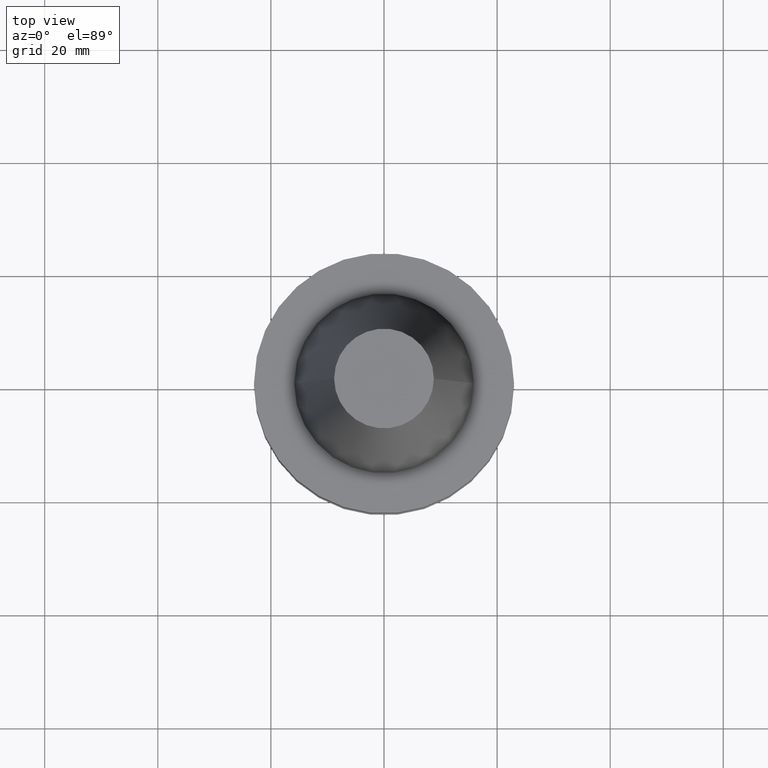
[diagram: clean part render]
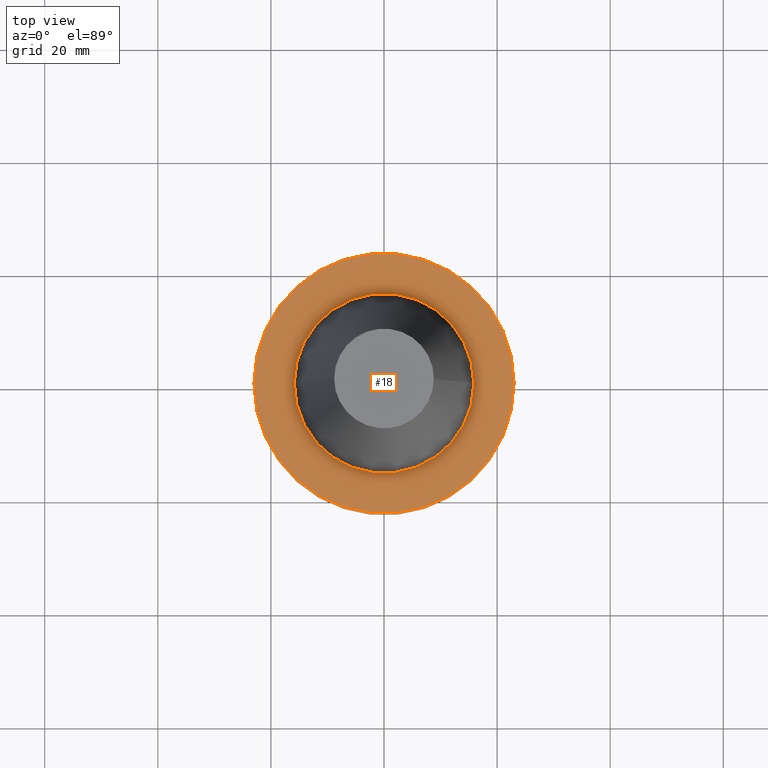
[diagram: same view with one face highlighted and labeled with its STEP entity id]
A machine part, top view. The second image highlights one B-rep face of the part: STEP entity #18.
In plain terms, the highlighted planar face has unit normal (0, 0, -1).
Its self-contained STEP definition (entity closure, byte-faithful):
#18 = ADVANCED_FACE ( 'NONE', ( #169, #405 ), #644, .F. ) ;
#24 = CIRCLE ( 'NONE', #332, 23.00000000000000000 ) ;
#29 = DIRECTION ( 'NONE',  ( 1.000000000000000000, 0.000000000000000000, 0.000000000000000000 ) ) ;
#40 = EDGE_LOOP ( 'NONE', ( #165, #723 ) ) ;
#55 = DIRECTION ( 'NONE',  ( -0.000000000000000000, -0.000000000000000000, 1.000000000000000000 ) ) ;
#89 = EDGE_CURVE ( 'NONE', #499, #131, #355, .T. ) ;
#104 = AXIS2_PLACEMENT_3D ( 'NONE', #368, #471, #728 ) ;
#117 = CARTESIAN_POINT ( 'NONE',  ( -23.00000000000000000, 2.816687638038912746E-15, -0.5000000000000004441 ) ) ;
#131 = VERTEX_POINT ( 'NONE', #187 ) ;
#146 = DIRECTION ( 'NONE',  ( -0.000000000000000000, -0.000000000000000000, 1.000000000000000000 ) ) ;
#165 = ORIENTED_EDGE ( 'NONE', *, *, #322, .T. ) ;
#169 = FACE_BOUND ( 'NONE', #283, .T. ) ;
#187 = CARTESIAN_POINT ( 'NONE',  ( -15.87500000000000000, 1.944126793646423238E-15, -0.5000000000000004441 ) ) ;
#261 = CARTESIAN_POINT ( 'NONE',  ( 0.000000000000000000, 0.000000000000000000, -0.5000000000000004441 ) ) ;
#262 = CARTESIAN_POINT ( 'NONE',  ( 0.000000000000000000, 0.000000000000000000, -0.5000000000000004441 ) ) ;
#283 = EDGE_LOOP ( 'NONE', ( #394, #383 ) ) ;
#322 = EDGE_CURVE ( 'NONE', #524, #573, #24, .T. ) ;
#332 = AXIS2_PLACEMENT_3D ( 'NONE', #262, #686, #747 ) ;
#349 = CARTESIAN_POINT ( 'NONE',  ( 15.87500000000000000, 0.000000000000000000, -0.5000000000000004441 ) ) ;
#355 = CIRCLE ( 'NONE', #642, 15.87500000000000000 ) ;
#363 = CIRCLE ( 'NONE', #505, 23.00000000000000000 ) ;
#368 = CARTESIAN_POINT ( 'NONE',  ( 0.000000000000000000, 0.000000000000000000, -0.5000000000000004441 ) ) ;
#383 = ORIENTED_EDGE ( 'NONE', *, *, #622, .F. ) ;
#394 = ORIENTED_EDGE ( 'NONE', *, *, #89, .F. ) ;
#400 = DIRECTION ( 'NONE',  ( -1.000000000000000000, 0.000000000000000000, -0.000000000000000000 ) ) ;
#404 = CARTESIAN_POINT ( 'NONE',  ( 23.00000000000000000, 0.000000000000000000, -0.5000000000000004441 ) ) ;
#405 = FACE_OUTER_BOUND ( 'NONE', #40, .T. ) ;
#471 = DIRECTION ( 'NONE',  ( -0.000000000000000000, -0.000000000000000000, 1.000000000000000000 ) ) ;
#499 = VERTEX_POINT ( 'NONE', #349 ) ;
#505 = AXIS2_PLACEMENT_3D ( 'NONE', #261, #146, #29 ) ;
#524 = VERTEX_POINT ( 'NONE', #404 ) ;
#533 = DIRECTION ( 'NONE',  ( 1.000000000000000000, 0.000000000000000000, 0.000000000000000000 ) ) ;
#535 = CARTESIAN_POINT ( 'NONE',  ( 0.000000000000000000, 23.00000000000000000, -0.4999999999999995559 ) ) ;
#573 = VERTEX_POINT ( 'NONE', #117 ) ;
#622 = EDGE_CURVE ( 'NONE', #131, #499, #768, .T. ) ;
#641 = AXIS2_PLACEMENT_3D ( 'NONE', #535, #650, #400 ) ;
#642 = AXIS2_PLACEMENT_3D ( 'NONE', #760, #55, #533 ) ;
#644 = PLANE ( 'NONE',  #641 ) ;
#650 = DIRECTION ( 'NONE',  ( 0.000000000000000000, 0.000000000000000000, -1.000000000000000000 ) ) ;
#686 = DIRECTION ( 'NONE',  ( -0.000000000000000000, -0.000000000000000000, 1.000000000000000000 ) ) ;
#723 = ORIENTED_EDGE ( 'NONE', *, *, #732, .T. ) ;
#728 = DIRECTION ( 'NONE',  ( 1.000000000000000000, 0.000000000000000000, 0.000000000000000000 ) ) ;
#732 = EDGE_CURVE ( 'NONE', #573, #524, #363, .T. ) ;
#747 = DIRECTION ( 'NONE',  ( 1.000000000000000000, 0.000000000000000000, 0.000000000000000000 ) ) ;
#760 = CARTESIAN_POINT ( 'NONE',  ( 0.000000000000000000, 0.000000000000000000, -0.5000000000000004441 ) ) ;
#768 = CIRCLE ( 'NONE', #104, 15.87500000000000000 ) ;